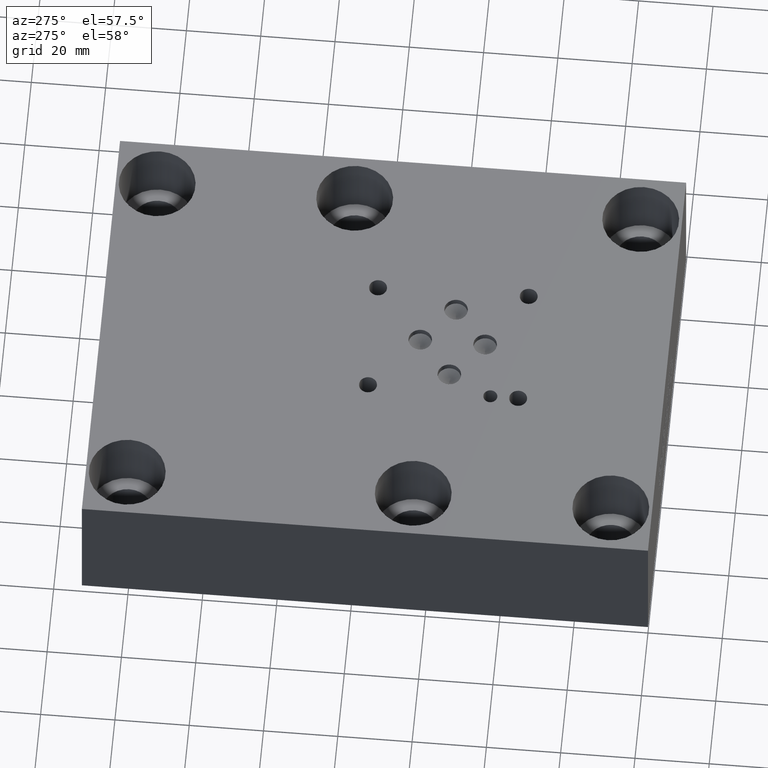
[diagram: clean part render]
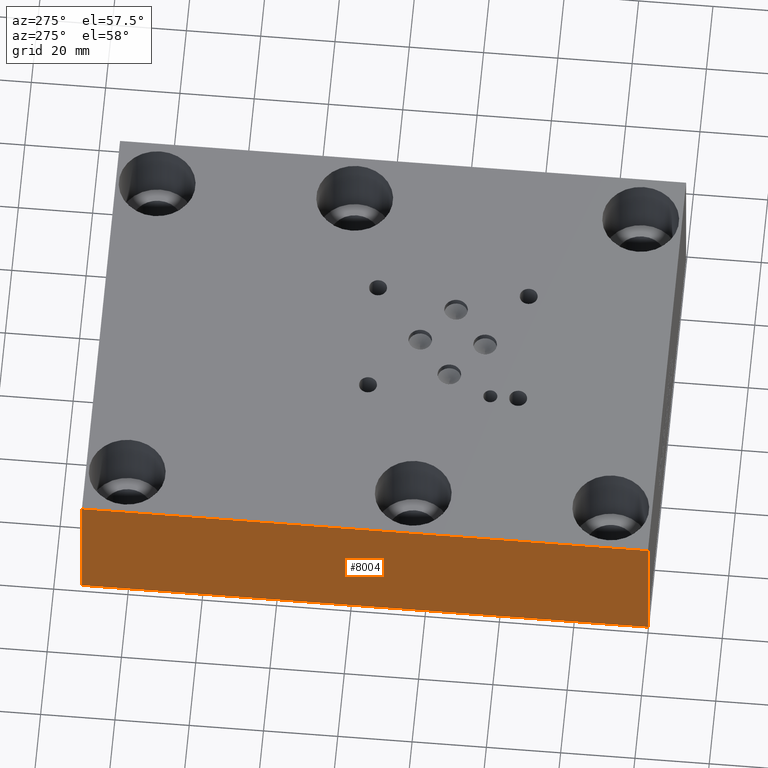
[diagram: same view with one face highlighted and labeled with its STEP entity id]
A machine part, auxiliary view. The second image highlights one B-rep face of the part: STEP entity #8004.
In plain terms, the highlighted planar face has unit normal (-1, 0, 0).
Its self-contained STEP definition (entity closure, byte-faithful):
#975=FACE_OUTER_BOUND('',#1460,.T.);
#1460=EDGE_LOOP('',(#6967,#6968,#6969,#6970));
#1860=LINE('',#10969,#2639);
#2217=LINE('',#13514,#2996);
#2254=LINE('',#13711,#3033);
#2255=LINE('',#13712,#3034);
#2639=VECTOR('',#9092,10.);
#2996=VECTOR('',#9811,10.);
#3033=VECTOR('',#10048,10.);
#3034=VECTOR('',#10049,10.);
#3300=VERTEX_POINT('',#10962);
#3303=VERTEX_POINT('',#10967);
#3701=VERTEX_POINT('',#13513);
#3761=VERTEX_POINT('',#13710);
#4159=EDGE_CURVE('',#3300,#3303,#1860,.T.);
#4747=EDGE_CURVE('',#3701,#3300,#2217,.T.);
#4839=EDGE_CURVE('',#3761,#3303,#2254,.T.);
#4840=EDGE_CURVE('',#3701,#3761,#2255,.T.);
#6967=ORIENTED_EDGE('',*,*,#4747,.T.);
#6968=ORIENTED_EDGE('',*,*,#4159,.T.);
#6969=ORIENTED_EDGE('',*,*,#4839,.F.);
#6970=ORIENTED_EDGE('',*,*,#4840,.F.);
#7260=PLANE('',#8439);
#8004=ADVANCED_FACE('',(#975),#7260,.T.);
#8439=AXIS2_PLACEMENT_3D('',#13709,#10046,#10047);
#9092=DIRECTION('',(0.,0.,1.));
#9811=DIRECTION('',(0.,-1.,0.));
#10046=DIRECTION('center_axis',(-1.,0.,0.));
#10047=DIRECTION('ref_axis',(0.,-1.,0.));
#10048=DIRECTION('',(0.,-1.,0.));
#10049=DIRECTION('',(0.,0.,1.));
#10962=CARTESIAN_POINT('',(0.,0.,0.));
#10967=CARTESIAN_POINT('',(0.,0.,38.1));
#10969=CARTESIAN_POINT('',(0.,0.,0.));
#13513=CARTESIAN_POINT('',(0.,152.4,0.));
#13514=CARTESIAN_POINT('',(0.,152.4,0.));
#13709=CARTESIAN_POINT('Origin',(0.,152.4,0.));
#13710=CARTESIAN_POINT('',(0.,152.4,38.1));
#13711=CARTESIAN_POINT('',(0.,152.4,38.1));
#13712=CARTESIAN_POINT('',(0.,152.4,0.));